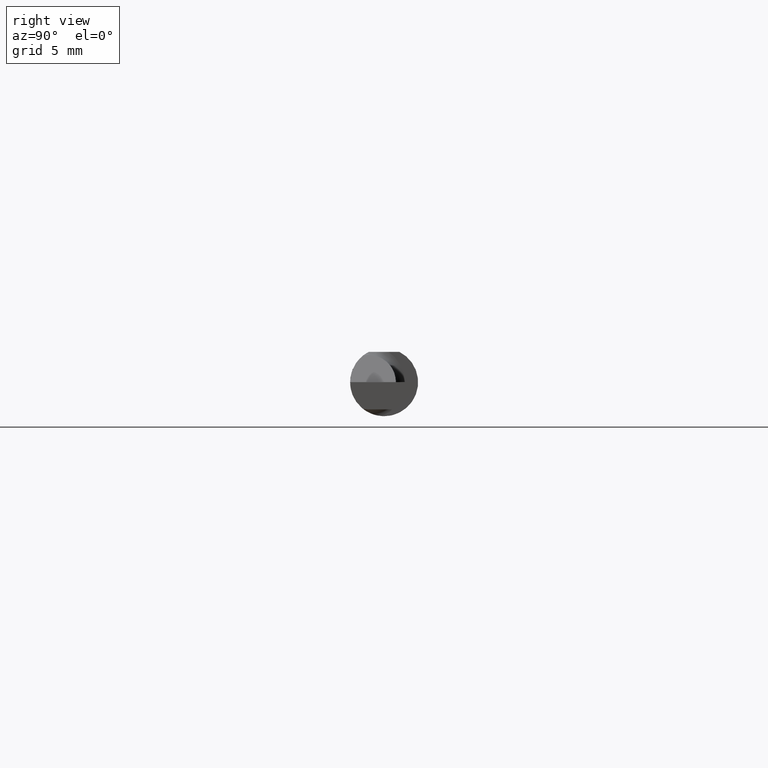
[diagram: clean part render]
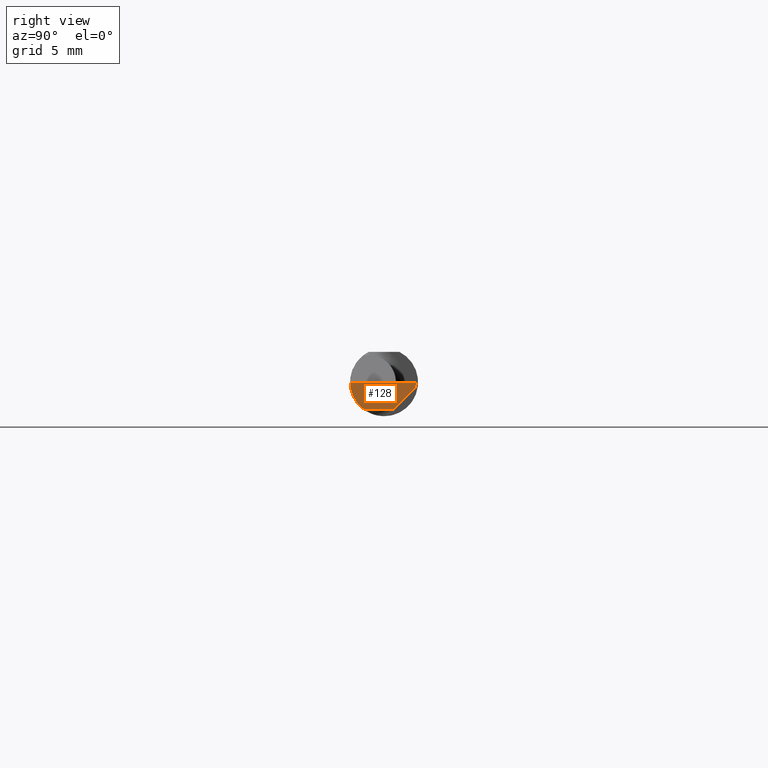
[diagram: same view with one face highlighted and labeled with its STEP entity id]
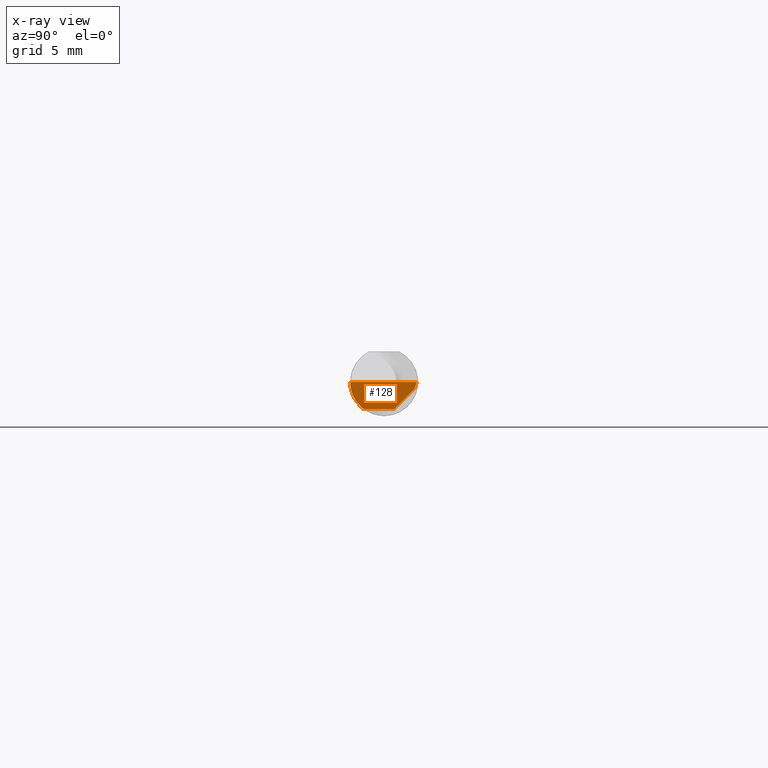
[diagram: x-ray of the same camera — body ghosted, the highlighted face saturated]
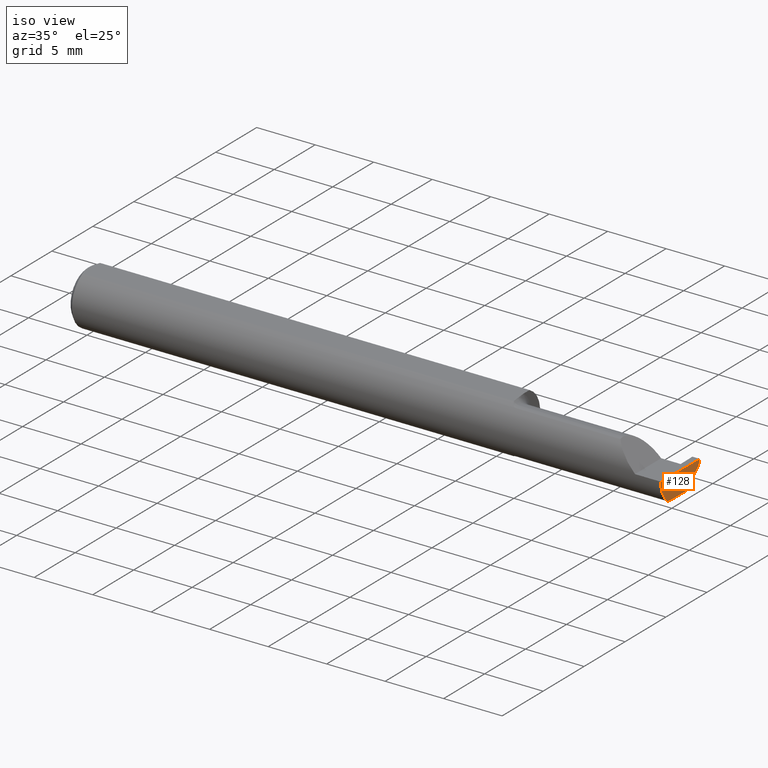
[diagram: same view with one face highlighted and labeled with its STEP entity id]
A machine part, right view. The second image highlights one B-rep face of the part: STEP entity #128.
The next image is the same camera in x-ray: the body ghosted, the highlighted face saturated — about 0% of this face is hidden behind the body in this view.
A second angle (iso view) of the same face is appended — the face is thin or edge-on in the first view.
In plain terms, the highlighted planar face has unit normal (-0.9995, 0.0174, 0.0262).
Its self-contained STEP definition (entity closure, byte-faithful):
#4 = EDGE_CURVE ( 'NONE', #412, #445, #687, .T. ) ;
#16 = CARTESIAN_POINT ( 'NONE',  ( 1.994172072281005237, -0.09355431490906530867, -0.09996576130738771271 ) ) ;
#26 = CARTESIAN_POINT ( 'NONE',  ( 1.996788249052547259, -0.09359999022555408332, -4.277588313355801215E-05 ) ) ;
#29 = LINE ( 'NONE', #508, #540 ) ;
#64 = VERTEX_POINT ( 'NONE', #205 ) ;
#84 = FACE_OUTER_BOUND ( 'NONE', #726, .T. ) ;
#111 = CARTESIAN_POINT ( 'NONE',  ( 1.996789369178486373, -0.09359999999634724399, 1.965990811775635199E-19 ) ) ;
#117 = VERTEX_POINT ( 'NONE', #567 ) ;
#128 = ADVANCED_FACE ( 'NONE', ( #84 ), #447, .F. ) ;
#135 = CARTESIAN_POINT ( 'NONE',  ( 1.995715029210241243, -0.04259999999999997816, -0.07499999999999998335 ) ) ;
#140 = DIRECTION ( 'NONE',  ( -0.03084274406794415904, -0.7067703747110382073, -0.7067703747110356538 ) ) ;
#193 = VERTEX_POINT ( 'NONE', #26 ) ;
#196 = EDGE_CURVE ( 'NONE', #613, #64, #759, .T. ) ;
#205 = CARTESIAN_POINT ( 'NONE',  ( 2.000000000000000444, 0.09040000000000000813, 6.269377719834979509E-17 ) ) ;
#211 = EDGE_CURVE ( 'NONE', #117, #445, #29, .T. ) ;
#213 = DIRECTION ( 'NONE',  ( -0.03056411404777943305, -0.3418603543644915810, -0.9392536042231929283 ) ) ;
#217 = CARTESIAN_POINT ( 'NONE',  ( 1.999381723781206155, 0.08348456554894213844, -0.01899999999999999953 ) ) ;
#227 = VERTEX_POINT ( 'NONE', #217 ) ;
#258 = DIRECTION ( 'NONE',  ( 0.02617296143184117893, -0.0004568507411563393905, 0.9996573249755575929 ) ) ;
#263 = CARTESIAN_POINT ( 'NONE',  ( 1.995486889784650053, -0.05810704225352113922, -0.07337936794867823409 ) ) ;
#268 = CARTESIAN_POINT ( 'NONE',  ( 1.997382703856816155, 0.09044568507411562819, -0.09996573249755577595 ) ) ;
#269 = LINE ( 'NONE', #754, #631 ) ;
#318 = LINE ( 'NONE', #16, #337 ) ;
#325 = DIRECTION ( 'NONE',  ( 0.01744642479411314534, 0.9998477995484629233, -2.135106780035503491E-18 ) ) ;
#330 = ORIENTED_EDGE ( 'NONE', *, *, #351, .F. ) ;
#337 = VECTOR ( 'NONE', #258, 39.37007874015748854 ) ;
#351 = EDGE_CURVE ( 'NONE', #227, #117, #612, .T. ) ;
#378 = CARTESIAN_POINT ( 'NONE',  ( 1.995624014772495514, -0.04781600192481526984, -0.07499999999999996947 ) ) ;
#383 = ORIENTED_EDGE ( 'NONE', *, *, #196, .F. ) ;
#395 = EDGE_CURVE ( 'NONE', #193, #613, #318, .T. ) ;
#412 = VERTEX_POINT ( 'NONE', #263 ) ;
#416 = ORIENTED_EDGE ( 'NONE', *, *, #395, .F. ) ;
#445 = VERTEX_POINT ( 'NONE', #522 ) ;
#447 = PLANE ( 'NONE',  #756 ) ;
#473 = CARTESIAN_POINT ( 'NONE',  ( 1.996788249052547259, -0.09359999022555408332, -4.277588313355801215E-05 ) ) ;
#475 =( BOUNDED_CURVE ( )  B_SPLINE_CURVE ( 3, ( #527, #771, #711, #473 ),
 .UNSPECIFIED., .F., .F. ) 
 B_SPLINE_CURVE_WITH_KNOTS ( ( 4, 4 ),
 ( 0.08204942185700607460, 0.9826237902196914842 ),
 .UNSPECIFIED. ) 
 CURVE ( )  GEOMETRIC_REPRESENTATION_ITEM ( )  RATIONAL_B_SPLINE_CURVE ( ( 1.000000000000000000, 0.9335481000009943076, 0.9335481000009943076, 1.000000000000000000 ) ) 
 REPRESENTATION_ITEM ( '' )  );
#487 = ORIENTED_EDGE ( 'NONE', *, *, #211, .F. ) ;
#506 = ORIENTED_EDGE ( 'NONE', *, *, #653, .F. ) ;
#508 = CARTESIAN_POINT ( 'NONE',  ( 1.997436282896842163, 0.05604437736224970185, -0.07500000000000002498 ) ) ;
#518 = CARTESIAN_POINT ( 'NONE',  ( 1.996678706298551376, -0.09994204647866641866, 4.067411700507134861E-19 ) ) ;
#522 = CARTESIAN_POINT ( 'NONE',  ( 1.995715029210241243, -0.04259999999999997816, -0.07499999999999998335 ) ) ;
#527 = CARTESIAN_POINT ( 'NONE',  ( 1.995486889784650053, -0.05810704225352113922, -0.07337936794867823409 ) ) ;
#540 = VECTOR ( 'NONE', #750, 39.37007874015748143 ) ;
#567 = CARTESIAN_POINT ( 'NONE',  ( 1.996937940439960535, 0.02748456554894196727, -0.07499999999999998335 ) ) ;
#581 = DIRECTION ( 'NONE',  ( -0.9995051766793262571, 0.01744044634007060890, 0.02617694830739122902 ) ) ;
#587 = EDGE_CURVE ( 'NONE', #64, #227, #269, .T. ) ;
#589 = VECTOR ( 'NONE', #325, 39.37007874015748143 ) ;
#612 = LINE ( 'NONE', #623, #655 ) ;
#613 = VERTEX_POINT ( 'NONE', #111 ) ;
#623 = CARTESIAN_POINT ( 'NONE',  ( 1.999287184445666554, 0.08131816941191073733, -0.02116639613703140757 ) ) ;
#631 = VECTOR ( 'NONE', #213, 39.37007874015748143 ) ;
#637 = ORIENTED_EDGE ( 'NONE', *, *, #587, .F. ) ;
#653 = EDGE_CURVE ( 'NONE', #412, #193, #475, .T. ) ;
#655 = VECTOR ( 'NONE', #140, 39.37007874015748854 ) ;
#667 = CARTESIAN_POINT ( 'NONE',  ( 1.995486889784650053, -0.05810704225352113922, -0.07337936794867823409 ) ) ;
#675 = CARTESIAN_POINT ( 'NONE',  ( 1.995547692684113805, -0.05300374992736060775, -0.07445783144524568964 ) ) ;
#687 =( BOUNDED_CURVE ( )  B_SPLINE_CURVE ( 3, ( #667, #675, #378, #135 ),
 .UNSPECIFIED., .F., .T. ) 
 B_SPLINE_CURVE_WITH_KNOTS ( ( 4, 4 ),
 ( 0.3794527164476043102, 0.5877155292608622350 ),
 .UNSPECIFIED. ) 
 CURVE ( )  GEOMETRIC_REPRESENTATION_ITEM ( )  RATIONAL_B_SPLINE_CURVE ( ( 1.000000000000000000, 0.9963888149483995926, 0.9963888149483995926, 1.000000000000000000 ) ) 
 REPRESENTATION_ITEM ( '' )  );
#693 = DIRECTION ( 'NONE',  ( 0.02618093032612054880, 0.000000000000000000, 0.9996572206948033390 ) ) ;
#711 = CARTESIAN_POINT ( 'NONE',  ( 1.996026586675631709, -0.09358669535931166128, -0.02913391928411205797 ) ) ;
#726 = EDGE_LOOP ( 'NONE', ( #746, #487, #330, #637, #383, #416, #506 ) ) ;
#746 = ORIENTED_EDGE ( 'NONE', *, *, #4, .T. ) ;
#750 = DIRECTION ( 'NONE',  ( -0.01744642479411313493, -0.9998477995484629233, 3.463134274570152404E-16 ) ) ;
#754 = CARTESIAN_POINT ( 'NONE',  ( 1.999906583493247680, 0.08935513411407894346, -0.002870745427926564477 ) ) ;
#756 = AXIS2_PLACEMENT_3D ( 'NONE', #268, #581, #693 ) ;
#759 = LINE ( 'NONE', #518, #589 ) ;
#771 = CARTESIAN_POINT ( 'NONE',  ( 1.995561922431087876, -0.08091355869144020718, -0.05531953381055031843 ) ) ;